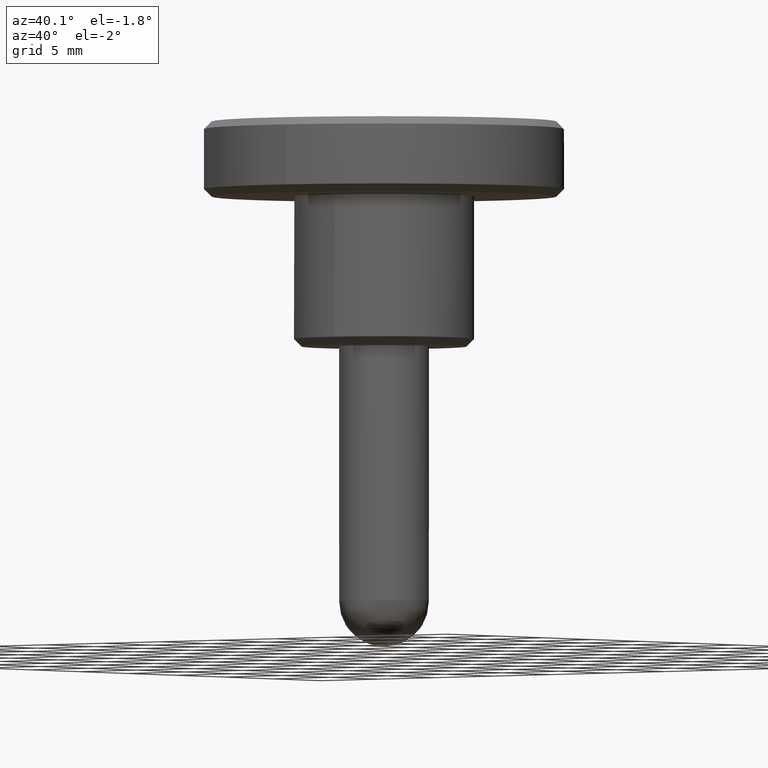
[diagram: clean part render]
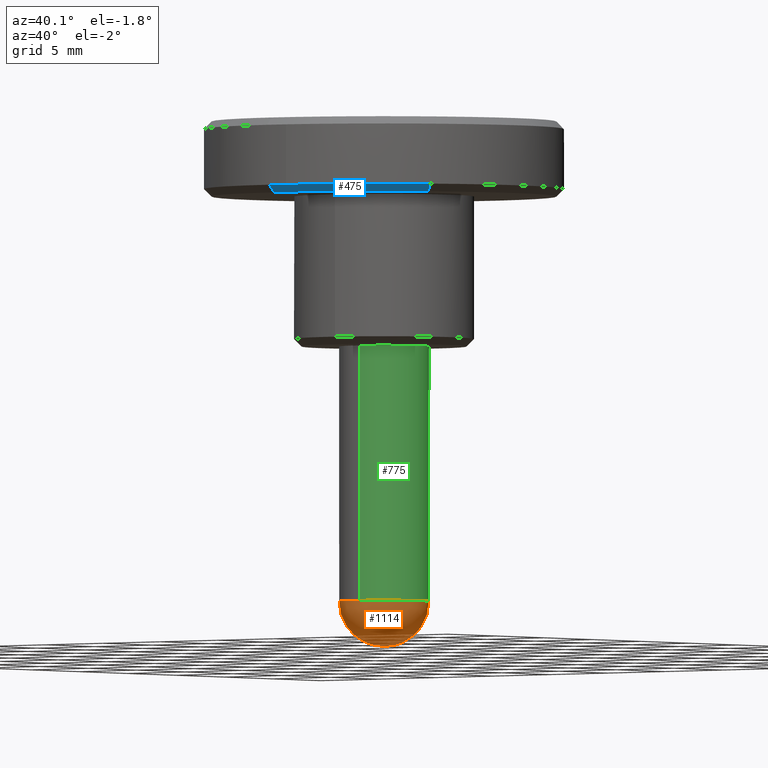
[diagram: same view with three faces highlighted in distinct colors, each labeled with its STEP entity id]
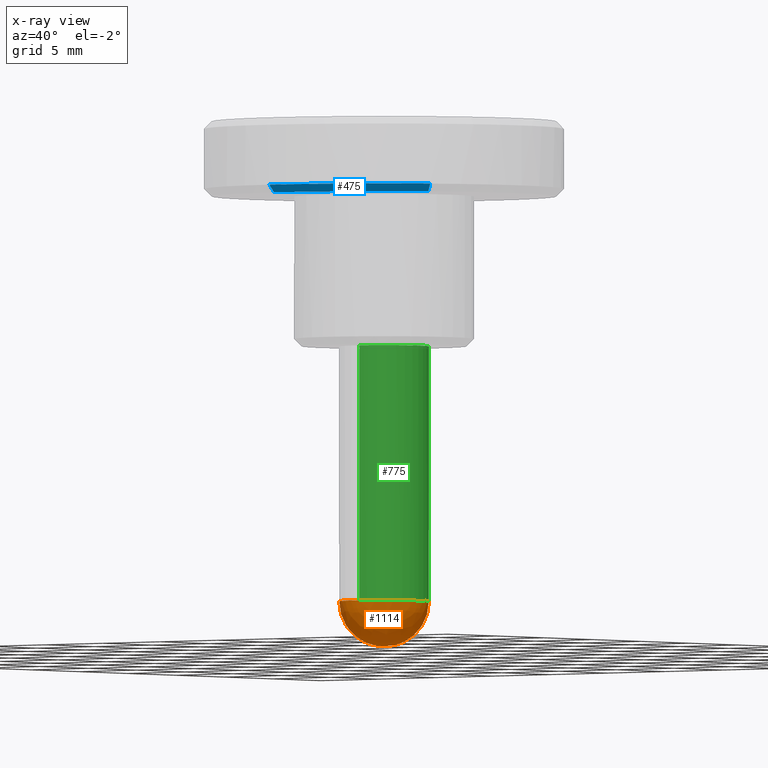
[diagram: x-ray of the same camera — body ghosted, the three highlighted faces saturated]
A machine part, auxiliary view with three faces highlighted in distinct colors.
The next image is the same camera in x-ray (body ghosted, the three faces saturated) — at least one of them is partly hidden behind the body in this view.
Their STEP definitions:

[orange] entity #1114 — the highlighted face is a freeform B-spline surface patch.
#695=CARTESIAN_POINT('',(0.372382066943663,-2.976798884072443,-17.0));
#696=VERTEX_POINT('',#695);
#697=CARTESIAN_POINT('',(3.0,0.0,-17.0));
#698=VERTEX_POINT('',#697);
#699=CARTESIAN_POINT('',(0.372382066943663,-2.976798884072443,-16.999999999999996));
#700=CARTESIAN_POINT('',(3.000000000000001,-2.648097539052714,-16.999999999999996));
#701=CARTESIAN_POINT('',(3.0,0.0,-17.0));
#709=(BOUNDED_CURVE()B_SPLINE_CURVE(2,(#699,#700,#701),.UNSPECIFIED.,.F.,.U.)B_SPLINE_CURVE_WITH_KNOTS((3,3),(0.771473819102890,1.0),.UNSPECIFIED.)CURVE()GEOMETRIC_REPRESENTATION_ITEM()RATIONAL_B_SPLINE_CURVE((0.954005643485778,0.732264925175600,1.0))REPRESENTATION_ITEM(''));
#710=EDGE_CURVE('',#696,#698,#709,.T.);
#712=CARTESIAN_POINT('',(-0.026179606528921,2.999885769192218,-17.0));
#713=VERTEX_POINT('',#712);
#714=CARTESIAN_POINT('',(3.0,0.0,-17.0));
#715=CARTESIAN_POINT('',(3.0,3.0,-17.000000000000004));
#716=CARTESIAN_POINT('',(0.0,3.0,-17.0));
#717=CARTESIAN_POINT('',(-0.013090052495906,3.0,-17.000000000000007));
#718=CARTESIAN_POINT('',(-0.026179606528921,2.999885769192219,-16.999999999999996));
#726=(BOUNDED_CURVE()B_SPLINE_CURVE(2,(#714,#715,#716,#717,#718),.UNSPECIFIED.,.F.,.U.)B_SPLINE_CURVE_WITH_KNOTS((3,2,3),(0.0,0.250000000000000,0.251539894338956),.UNSPECIFIED.)CURVE()GEOMETRIC_REPRESENTATION_ITEM()RATIONAL_B_SPLINE_CURVE((1.0,0.707106781186548,1.0,0.998195901561722,0.996414028091220))REPRESENTATION_ITEM(''));
#727=EDGE_CURVE('',#698,#713,#726,.T.);
#798=CARTESIAN_POINT('',(-3.0,0.0,-17.0));
#799=VERTEX_POINT('',#798);
#800=CARTESIAN_POINT('',(-3.0,0.0,-17.0));
#801=CARTESIAN_POINT('',(-3.0,-3.0,-17.000000000000004));
#802=CARTESIAN_POINT('',(0.0,-3.0,-17.0));
#803=CARTESIAN_POINT('',(0.186913801601756,-3.000000000000001,-17.000000000000004));
#804=CARTESIAN_POINT('',(0.372382066943663,-2.976798884072443,-16.999999999999996));
#812=(BOUNDED_CURVE()B_SPLINE_CURVE(2,(#800,#801,#802,#803,#804),.UNSPECIFIED.,.F.,.U.)B_SPLINE_CURVE_WITH_KNOTS((3,2,3),(0.500000000000000,0.750000000000000,0.771473819102890),.UNSPECIFIED.)CURVE()GEOMETRIC_REPRESENTATION_ITEM()RATIONAL_B_SPLINE_CURVE((1.0,0.707106781186548,1.0,0.974841856010947,0.954005643485778))REPRESENTATION_ITEM(''));
#813=EDGE_CURVE('',#799,#696,#812,.T.);
#847=CARTESIAN_POINT('',(-0.026179606528921,2.999885769192219,-16.999999999999996));
#848=CARTESIAN_POINT('',(-3.000000000000000,2.973933631717919,-17.000000000000007));
#849=CARTESIAN_POINT('',(-3.0,0.0,-17.0));
#857=(BOUNDED_CURVE()B_SPLINE_CURVE(2,(#847,#848,#849),.UNSPECIFIED.,.F.,.U.)B_SPLINE_CURVE_WITH_KNOTS((3,3),(0.251539894338956,0.500000000000000),.UNSPECIFIED.)CURVE()GEOMETRIC_REPRESENTATION_ITEM()RATIONAL_B_SPLINE_CURVE((0.996414028091220,0.708910879624826,1.0))REPRESENTATION_ITEM(''));
#858=EDGE_CURVE('',#713,#799,#857,.T.);
#1064=CARTESIAN_POINT('',(-1.966516590319033,1.966516590319031,-15.874999999999995));
#1065=CARTESIAN_POINT('',(-1.780996157270068,2.374661543026756,-16.264150943396221));
#1066=CARTESIAN_POINT('',(-0.749149177264394,2.996596709057574,-16.857142857142854));
#1067=CARTESIAN_POINT('',(0.749149177264394,2.996596709057574,-16.857142857142854));
#1068=CARTESIAN_POINT('',(1.780996157270068,2.374661543026756,-16.264150943396221));
#1069=CARTESIAN_POINT('',(1.966516590319033,1.966516590319031,-15.874999999999995));
#1070=CARTESIAN_POINT('',(-2.374661543026757,1.780996157270067,-16.264150943396221));
#1071=CARTESIAN_POINT('',(-2.247447531793181,2.247447531793181,-16.857142857142854));
#1072=CARTESIAN_POINT('',(-1.014976304680792,3.044928914042377,-17.870967741935480));
#1073=CARTESIAN_POINT('',(1.014976304680792,3.044928914042377,-17.870967741935480));
#1074=CARTESIAN_POINT('',(2.247447531793181,2.247447531793181,-16.857142857142854));
#1075=CARTESIAN_POINT('',(2.374661543026757,1.780996157270067,-16.264150943396221));
#1076=CARTESIAN_POINT('',(-2.996596709057575,0.749149177264394,-16.857142857142854));
#1077=CARTESIAN_POINT('',(-3.044928914042376,1.014976304680793,-17.870967741935488));
#1078=CARTESIAN_POINT('',(-1.573213272255229,1.573213272255232,-20.0));
#1079=CARTESIAN_POINT('',(1.573213272255229,1.573213272255232,-20.0));
#1080=CARTESIAN_POINT('',(3.044928914042376,1.014976304680793,-17.870967741935488));
#1081=CARTESIAN_POINT('',(2.996596709057575,0.749149177264394,-16.857142857142854));
#1082=CARTESIAN_POINT('',(-2.996596709057575,-0.749149177264394,-16.857142857142854));
#1083=CARTESIAN_POINT('',(-3.044928914042376,-1.014976304680791,-17.870967741935488));
#1084=CARTESIAN_POINT('',(-1.573213272255229,-1.573213272255225,-20.0));
#1085=CARTESIAN_POINT('',(1.573213272255229,-1.573213272255225,-20.0));
#1086=CARTESIAN_POINT('',(3.044928914042376,-1.014976304680791,-17.870967741935488));
#1087=CARTESIAN_POINT('',(2.996596709057575,-0.749149177264394,-16.857142857142854));
#1088=CARTESIAN_POINT('',(-2.374661543026757,-1.780996157270069,-16.264150943396221));
#1089=CARTESIAN_POINT('',(-2.247447531793181,-2.247447531793182,-16.857142857142854));
#1090=CARTESIAN_POINT('',(-1.014976304680792,-3.044928914042374,-17.870967741935488));
#1091=CARTESIAN_POINT('',(1.014976304680792,-3.044928914042374,-17.870967741935488));
#1092=CARTESIAN_POINT('',(2.247447531793181,-2.247447531793182,-16.857142857142854));
#1093=CARTESIAN_POINT('',(2.374661543026757,-1.780996157270069,-16.264150943396221));
#1094=CARTESIAN_POINT('',(-1.966516590319033,-1.966516590319034,-15.875000000000000));
#1095=CARTESIAN_POINT('',(-1.780996157270068,-2.374661543026758,-16.264150943396221));
#1096=CARTESIAN_POINT('',(-0.749149177264394,-2.996596709057575,-16.857142857142861));
#1097=CARTESIAN_POINT('',(0.749149177264394,-2.996596709057575,-16.857142857142861));
#1098=CARTESIAN_POINT('',(1.780996157270068,-2.374661543026758,-16.264150943396221));
#1099=CARTESIAN_POINT('',(1.966516590319033,-1.966516590319034,-15.875000000000000));
#1107=(BOUNDED_SURFACE()B_SPLINE_SURFACE(2,2,((#1064,#1070,#1076,#1082,#1088,#1094),(#1065,#1071,#1077,#1083,#1089,#1095),(#1066,#1072,#1078,#1084,#1090,#1096),(#1067,#1073,#1079,#1085,#1091,#1097),(#1068,#1074,#1080,#1086,#1092,#1098),(#1069,#1075,#1081,#1087,#1093,#1099)),.UNSPECIFIED.,.F.,.F.,.U.)B_SPLINE_SURFACE_WITH_KNOTS((3,1,1,1,3),(3,1,1,1,3),(0.0,2.766089269899301,5.532178539798601,8.298267809697903,11.064357079597199),(0.0,2.766089269899303,5.532178539798605,8.298267809697908,11.064357079597210),.UNSPECIFIED.)GEOMETRIC_REPRESENTATION_ITEM()RATIONAL_B_SPLINE_SURFACE(((3.200000000000004,2.650000000000003,2.100000000000002,2.100000000000002,2.650000000000003,3.200000000000004),(2.650000000000003,2.100000000000002,1.550000000000001,1.550000000000001,2.100000000000002,2.650000000000003),(2.100000000000002,1.550000000000001,1.0,1.0,1.550000000000001,2.100000000000002),(2.100000000000002,1.550000000000001,1.0,1.0,1.550000000000001,2.100000000000002),(2.650000000000003,2.100000000000002,1.550000000000001,1.550000000000001,2.100000000000002,2.650000000000003),(3.200000000000004,2.650000000000003,2.100000000000002,2.100000000000002,2.650000000000003,3.200000000000004)))REPRESENTATION_ITEM('')SURFACE());
#1108=ORIENTED_EDGE('',*,*,#710,.F.);
#1109=ORIENTED_EDGE('',*,*,#813,.F.);
#1110=ORIENTED_EDGE('',*,*,#858,.F.);
#1111=ORIENTED_EDGE('',*,*,#727,.F.);
#1112=EDGE_LOOP('',(#1108,#1109,#1110,#1111));
#1113=FACE_OUTER_BOUND('',#1112,.T.);
#1114=ADVANCED_FACE('',(#1113),#1107,.T.);

[blue] entity #475 — the highlighted face is a freeform B-spline surface patch.
#288=CARTESIAN_POINT('',(9.416960296174523,-6.600822583608252,10.000000000000011));
#289=VERTEX_POINT('',#288);
#320=CARTESIAN_POINT('',(0.100355158267969,-11.499562115242639,10.000000000004990));
#321=VERTEX_POINT('',#320);
#337=CARTESIAN_POINT('',(0.104717973508582,-11.999542532737770,10.499999452039960));
#338=VERTEX_POINT('',#337);
#339=CARTESIAN_POINT('',(0.100355158267969,-11.499562115242639,10.000000000004990));
#340=CARTESIAN_POINT('',(0.104717973508582,-11.999542532737770,10.499999452039960));
#341=QUASI_UNIFORM_CURVE('',1,(#339,#340),.UNSPECIFIED.,.F.,.U.);
#342=EDGE_CURVE('',#321,#338,#341,.T.);
#393=CARTESIAN_POINT('',(9.826393352525180,-6.887814869859507,10.500000000000400));
#394=VERTEX_POINT('',#393);
#408=CARTESIAN_POINT('',(9.416960296174523,-6.600822583608252,10.000000000000011));
#409=CARTESIAN_POINT('',(9.826393352525180,-6.887814869859507,10.500000000000400));
#410=QUASI_UNIFORM_CURVE('',1,(#408,#409),.UNSPECIFIED.,.F.,.U.);
#411=EDGE_CURVE('',#289,#394,#410,.T.);
#416=CARTESIAN_POINT('',(0.100246076537570,-11.487062591199660,9.987499999999999));
#417=CARTESIAN_POINT('',(6.012851147515387,-11.435464068446271,9.987499999999999));
#418=CARTESIAN_POINT('',(9.406724469765697,-6.593647776452057,9.987500000000001));
#419=CARTESIAN_POINT('',(0.104830234716559,-12.012355088909260,10.512812500000001));
#420=CARTESIAN_POINT('',(6.287813138238249,-11.958397014557701,10.512812500000004));
#421=CARTESIAN_POINT('',(9.836885074599064,-6.895169047186953,10.512812500000004));
#429=(BOUNDED_SURFACE()B_SPLINE_SURFACE(2,1,((#416,#419),(#417,#420),(#418,#421)),.UNSPECIFIED.,.F.,.F.,.U.)B_SPLINE_SURFACE_WITH_KNOTS((3,3),(2,2),(0.0,11.860688764435860),(0.0,1.0),.UNSPECIFIED.)GEOMETRIC_REPRESENTATION_ITEM()RATIONAL_B_SPLINE_SURFACE(((1.0,1.0),(0.824264068711928,0.824264068711928),(0.859411254969543,0.859411254969543)))REPRESENTATION_ITEM('')SURFACE());
#430=CARTESIAN_POINT('',(9.416960296174523,-6.600822583608252,10.000000000000005));
#431=CARTESIAN_POINT('',(6.019393967071236,-11.447907446067143,10.0));
#432=CARTESIAN_POINT('',(0.100355158267969,-11.499562115242638,10.000000000004988));
#440=(BOUNDED_CURVE()B_SPLINE_CURVE(2,(#430,#431,#432),.UNSPECIFIED.,.F.,.U.)B_SPLINE_CURVE_WITH_KNOTS((3,3),(0.098673726202875,0.248460105663891),.UNSPECIFIED.)CURVE()GEOMETRIC_REPRESENTATION_ITEM()RATIONAL_B_SPLINE_CURVE((0.860049271925870,0.823090203820899,0.996414028097809))REPRESENTATION_ITEM(''));
#441=EDGE_CURVE('',#289,#321,#440,.T.);
#442=ORIENTED_EDGE('',*,*,#441,.F.);
#443=ORIENTED_EDGE('',*,*,#411,.T.);
#444=CARTESIAN_POINT('',(1.489533232262267,-11.907194915259360,10.500000000000000));
#445=VERTEX_POINT('',#444);
#446=CARTESIAN_POINT('',(1.489533232262267,-11.907194915259359,10.500000000000002));
#447=CARTESIAN_POINT('',(6.771180838092149,-11.246486017322699,10.500000000000000));
#448=CARTESIAN_POINT('',(9.826393352525180,-6.887814869859507,10.500000000000398));
#456=(BOUNDED_CURVE()B_SPLINE_CURVE(2,(#446,#447,#448),.UNSPECIFIED.,.F.,.U.)B_SPLINE_CURVE_WITH_KNOTS((3,3),(0.271473889416736,0.401326273796901),.UNSPECIFIED.)CURVE()GEOMETRIC_REPRESENTATION_ITEM()RATIONAL_B_SPLINE_CURVE((0.954005507033687,0.828008821150943,0.860049271925760))REPRESENTATION_ITEM(''));
#457=EDGE_CURVE('',#445,#394,#456,.T.);
#458=ORIENTED_EDGE('',*,*,#457,.F.);
#459=CARTESIAN_POINT('',(0.104717973508581,-11.999542532737770,10.499999452039967));
#460=CARTESIAN_POINT('',(0.799800049863691,-11.993477243204127,10.500000000000004));
#461=CARTESIAN_POINT('',(1.489533232262267,-11.907194915259359,10.500000000000002));
#469=(BOUNDED_CURVE()B_SPLINE_CURVE(2,(#459,#460,#461),.UNSPECIFIED.,.F.,.U.)B_SPLINE_CURVE_WITH_KNOTS((3,3),(0.251539881191590,0.271473889416736),.UNSPECIFIED.)CURVE()GEOMETRIC_REPRESENTATION_ITEM()RATIONAL_B_SPLINE_CURVE((0.996414058517911,0.973347616034741,0.954005507033687))REPRESENTATION_ITEM(''));
#470=EDGE_CURVE('',#338,#445,#469,.T.);
#471=ORIENTED_EDGE('',*,*,#470,.F.);
#472=ORIENTED_EDGE('',*,*,#342,.F.);
#473=EDGE_LOOP('',(#442,#443,#458,#471,#472));
#474=FACE_OUTER_BOUND('',#473,.T.);
#475=ADVANCED_FACE('',(#474),#429,.T.);

[green] entity #775 — the highlighted face is a freeform B-spline surface patch.
#677=CARTESIAN_POINT('',(0.372384006239488,-2.976798641476615,-17.425000000000004));
#678=CARTESIAN_POINT('',(3.023198491507334,-2.645193774399663,-17.425000000000008));
#679=CARTESIAN_POINT('',(2.999885769192513,0.026179606495122,-17.425000000000001));
#680=CARTESIAN_POINT('',(2.973706162697392,3.026065375687634,-17.424999999999997));
#681=CARTESIAN_POINT('',(-0.026179606495122,2.999885769192513,-17.425000000000001));
#682=CARTESIAN_POINT('',(0.372384006239488,-2.976798641476615,0.435625000000002));
#683=CARTESIAN_POINT('',(3.023198491507334,-2.645193774399663,0.435625000000002));
#684=CARTESIAN_POINT('',(2.999885769192513,0.026179606495122,0.435625000000002));
#685=CARTESIAN_POINT('',(2.973706162697392,3.026065375687634,0.435625000000002));
#686=CARTESIAN_POINT('',(-0.026179606495122,2.999885769192513,0.435625000000002));
#694=(BOUNDED_SURFACE()B_SPLINE_SURFACE(2,1,((#677,#682),(#678,#683),(#679,#684),(#680,#685),(#681,#686)),.UNSPECIFIED.,.F.,.F.,.U.)B_SPLINE_SURFACE_WITH_KNOTS((3,2,3),(2,2),(0.0,4.572917728598967,9.543480477076107),(0.0,17.860625000000010),.UNSPECIFIED.)GEOMETRIC_REPRESENTATION_ITEM()RATIONAL_B_SPLINE_SURFACE(((0.956886118190660,0.956886118190660),(0.730538238691624,0.730538238691624),(1.0,1.0),(0.707106781186548,0.707106781186548),(1.0,1.0)))REPRESENTATION_ITEM('')SURFACE());
#695=CARTESIAN_POINT('',(0.372382066943663,-2.976798884072443,-17.0));
#696=VERTEX_POINT('',#695);
#697=CARTESIAN_POINT('',(3.0,0.0,-17.0));
#698=VERTEX_POINT('',#697);
#699=CARTESIAN_POINT('',(0.372382066943663,-2.976798884072443,-16.999999999999996));
#700=CARTESIAN_POINT('',(3.000000000000001,-2.648097539052714,-16.999999999999996));
#701=CARTESIAN_POINT('',(3.0,0.0,-17.0));
#709=(BOUNDED_CURVE()B_SPLINE_CURVE(2,(#699,#700,#701),.UNSPECIFIED.,.F.,.U.)B_SPLINE_CURVE_WITH_KNOTS((3,3),(0.771473819102890,1.0),.UNSPECIFIED.)CURVE()GEOMETRIC_REPRESENTATION_ITEM()RATIONAL_B_SPLINE_CURVE((0.954005643485778,0.732264925175600,1.0))REPRESENTATION_ITEM(''));
#710=EDGE_CURVE('',#696,#698,#709,.T.);
#711=ORIENTED_EDGE('',*,*,#710,.T.);
#712=CARTESIAN_POINT('',(-0.026179606528921,2.999885769192218,-17.0));
#713=VERTEX_POINT('',#712);
#714=CARTESIAN_POINT('',(3.0,0.0,-17.0));
#715=CARTESIAN_POINT('',(3.0,3.0,-17.000000000000004));
#716=CARTESIAN_POINT('',(0.0,3.0,-17.0));
#717=CARTESIAN_POINT('',(-0.013090052495906,3.0,-17.000000000000007));
#718=CARTESIAN_POINT('',(-0.026179606528921,2.999885769192219,-16.999999999999996));
#726=(BOUNDED_CURVE()B_SPLINE_CURVE(2,(#714,#715,#716,#717,#718),.UNSPECIFIED.,.F.,.U.)B_SPLINE_CURVE_WITH_KNOTS((3,2,3),(0.0,0.250000000000000,0.251539894338956),.UNSPECIFIED.)CURVE()GEOMETRIC_REPRESENTATION_ITEM()RATIONAL_B_SPLINE_CURVE((1.0,0.707106781186548,1.0,0.998195901561722,0.996414028091220))REPRESENTATION_ITEM(''));
#727=EDGE_CURVE('',#698,#713,#726,.T.);
#728=ORIENTED_EDGE('',*,*,#727,.T.);
#729=CARTESIAN_POINT('',(-0.026179606523298,2.999885769192267,-4.163336E-016));
#730=VERTEX_POINT('',#729);
#731=CARTESIAN_POINT('',(-0.026179606528921,2.999885769192218,-17.0));
#732=CARTESIAN_POINT('',(-0.026179606523298,2.999885769192267,-4.163336E-016));
#733=QUASI_UNIFORM_CURVE('',1,(#731,#732),.UNSPECIFIED.,.F.,.U.);
#734=EDGE_CURVE('',#713,#730,#733,.T.);
#735=ORIENTED_EDGE('',*,*,#734,.T.);
#736=CARTESIAN_POINT('',(3.0,0.0,0.0));
#737=VERTEX_POINT('',#736);
#738=CARTESIAN_POINT('',(-0.026179606523298,2.999885769192267,-4.163336E-016));
#739=CARTESIAN_POINT('',(-0.013090052490283,3.000000000000001,0.0));
#740=CARTESIAN_POINT('',(0.0,3.0,0.0));
#741=CARTESIAN_POINT('',(3.0,3.0,0.0));
#742=CARTESIAN_POINT('',(3.0,0.0,0.0));
#750=(BOUNDED_CURVE()B_SPLINE_CURVE(2,(#738,#739,#740,#741,#742),.UNSPECIFIED.,.F.,.U.)B_SPLINE_CURVE_WITH_KNOTS((3,2,3),(0.248460105661704,0.250000000000000,0.500000000000000),.UNSPECIFIED.)CURVE()GEOMETRIC_REPRESENTATION_ITEM()RATIONAL_B_SPLINE_CURVE((0.996414028092748,0.998195901562495,1.0,0.707106781186548,1.0))REPRESENTATION_ITEM(''));
#751=EDGE_CURVE('',#730,#737,#750,.T.);
#752=ORIENTED_EDGE('',*,*,#751,.T.);
#753=CARTESIAN_POINT('',(0.372384006262696,-2.976798641473713,-4.350921E-016));
#754=VERTEX_POINT('',#753);
#755=CARTESIAN_POINT('',(3.0,0.0,0.0));
#756=CARTESIAN_POINT('',(3.000000000000001,-2.648095800409071,0.0));
#757=CARTESIAN_POINT('',(0.372384006262696,-2.976798641473713,-4.350921E-016));
#765=(BOUNDED_CURVE()B_SPLINE_CURVE(2,(#755,#756,#757),.UNSPECIFIED.,.F.,.U.)B_SPLINE_CURVE_WITH_KNOTS((3,3),(0.500000000000000,0.728526071026669),.UNSPECIFIED.)CURVE()GEOMETRIC_REPRESENTATION_ITEM()RATIONAL_B_SPLINE_CURVE((1.0,0.732265053896829,0.954005430269615))REPRESENTATION_ITEM(''));
#766=EDGE_CURVE('',#737,#754,#765,.T.);
#767=ORIENTED_EDGE('',*,*,#766,.T.);
#768=CARTESIAN_POINT('',(0.372382066943663,-2.976798884072443,-17.0));
#769=CARTESIAN_POINT('',(0.372384006262696,-2.976798641473713,-4.350921E-016));
#770=QUASI_UNIFORM_CURVE('',1,(#768,#769),.UNSPECIFIED.,.F.,.U.);
#771=EDGE_CURVE('',#696,#754,#770,.T.);
#772=ORIENTED_EDGE('',*,*,#771,.F.);
#773=EDGE_LOOP('',(#711,#728,#735,#752,#767,#772));
#774=FACE_OUTER_BOUND('',#773,.T.);
#775=ADVANCED_FACE('',(#774),#694,.T.);